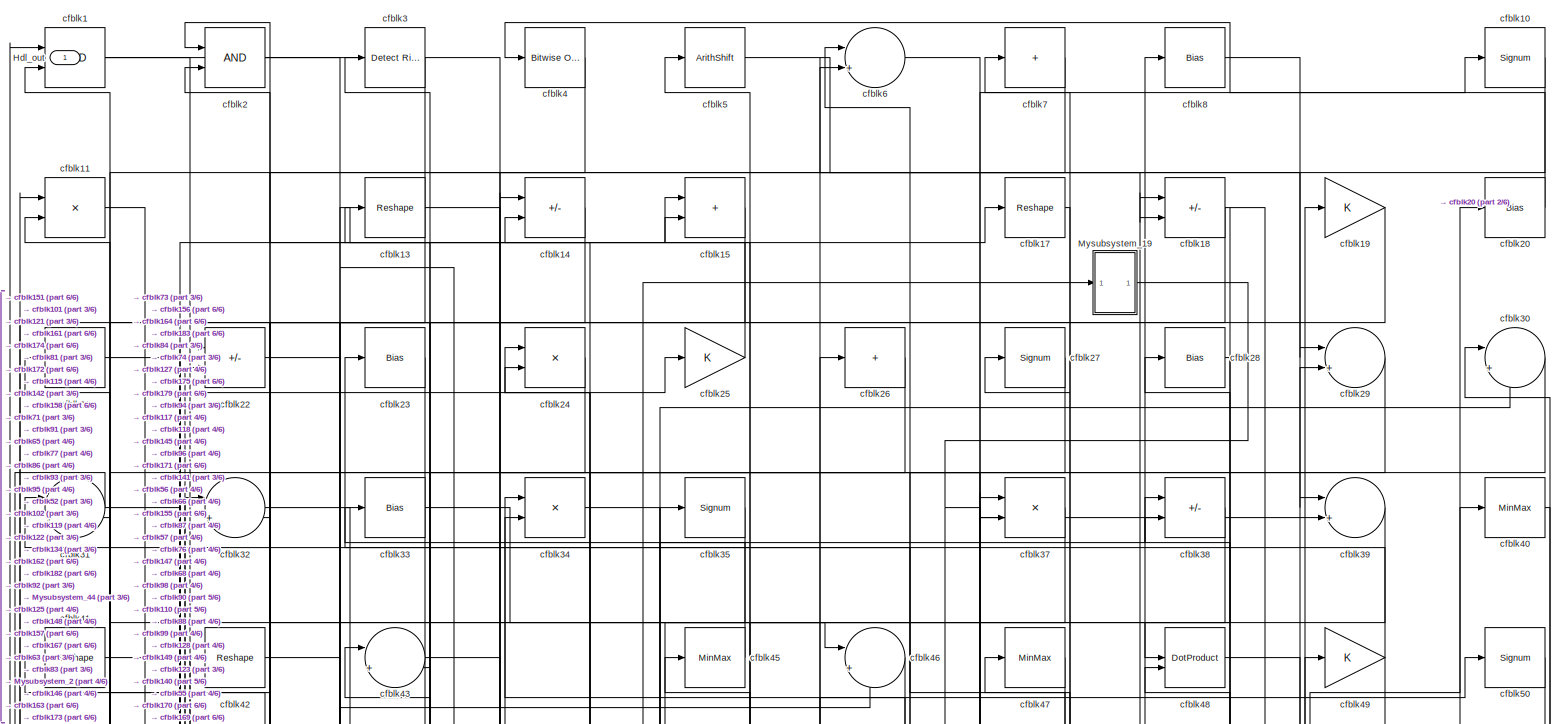
[diagram: root canvas - part 1/6, full width, top band]
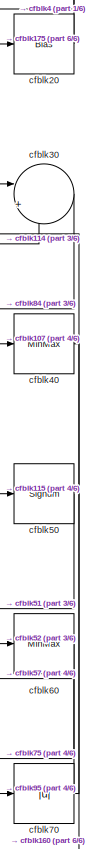
[diagram: root canvas - part 2/6, top right region]
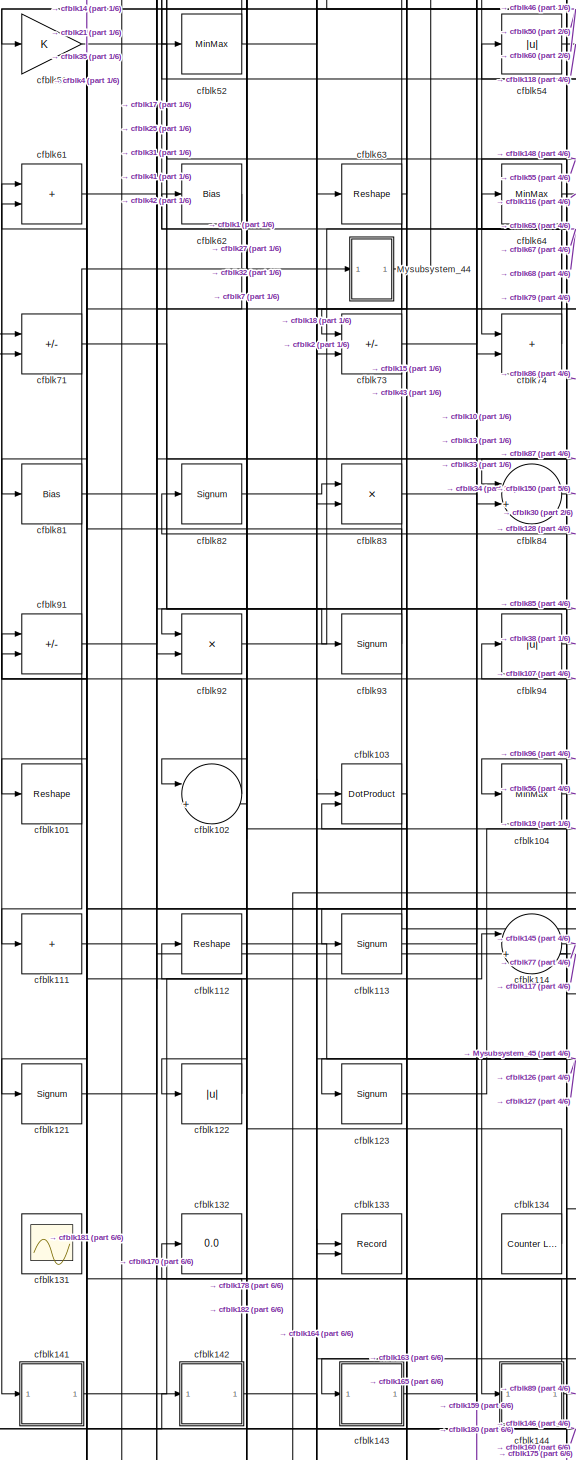
[diagram: root canvas - part 3/6, middle left region]
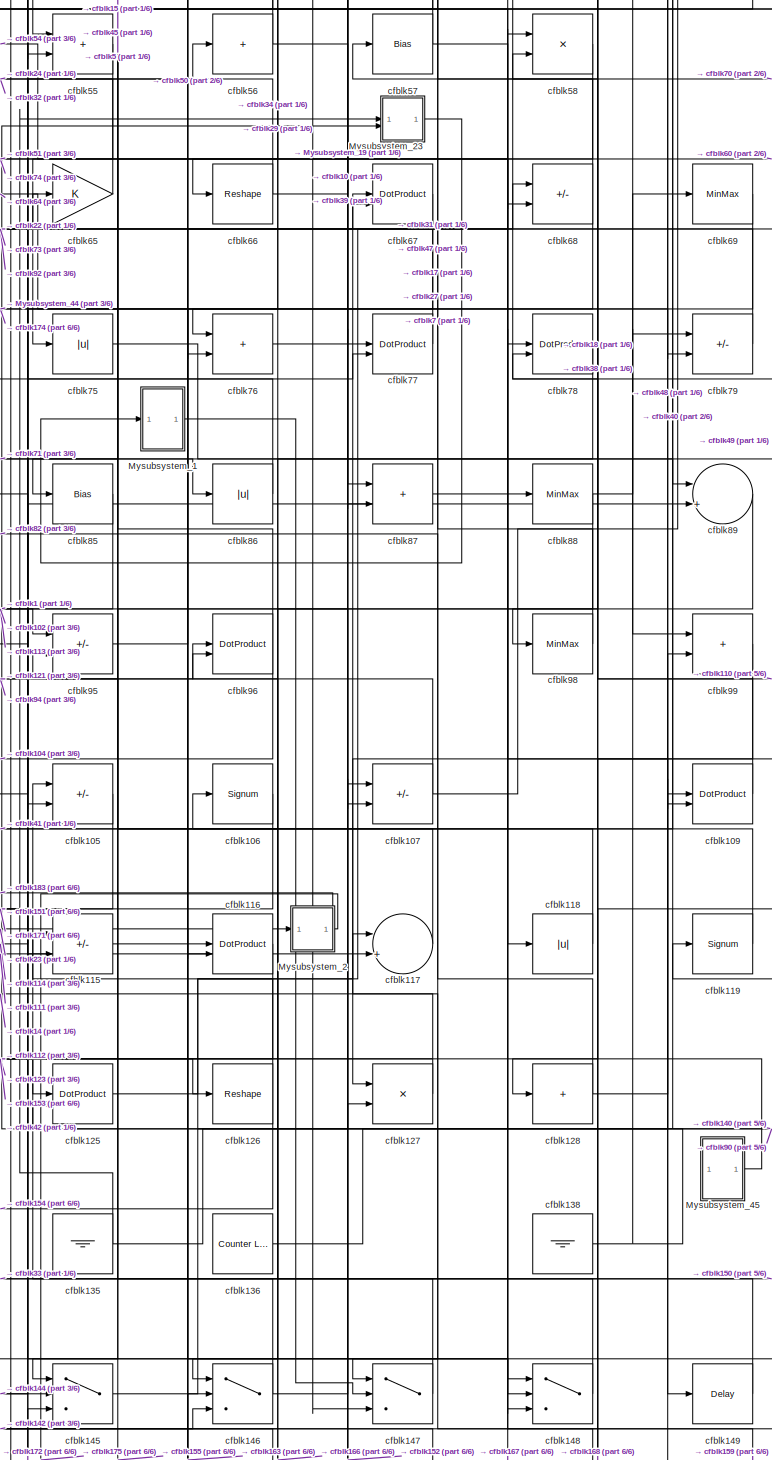
[diagram: root canvas - part 4/6, central region]
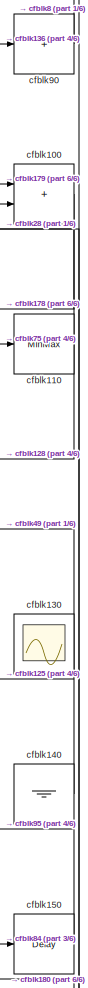
[diagram: root canvas - part 5/6, middle right region]
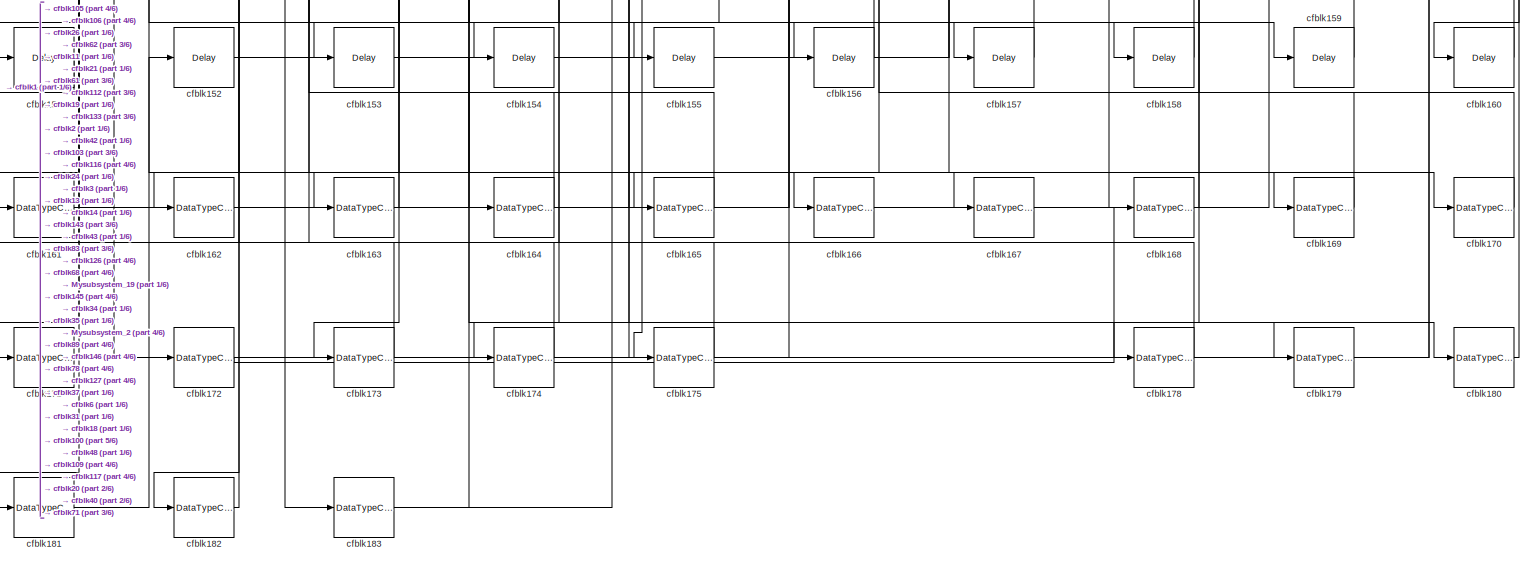
[diagram: root canvas - part 6/6, full width, bottom band]
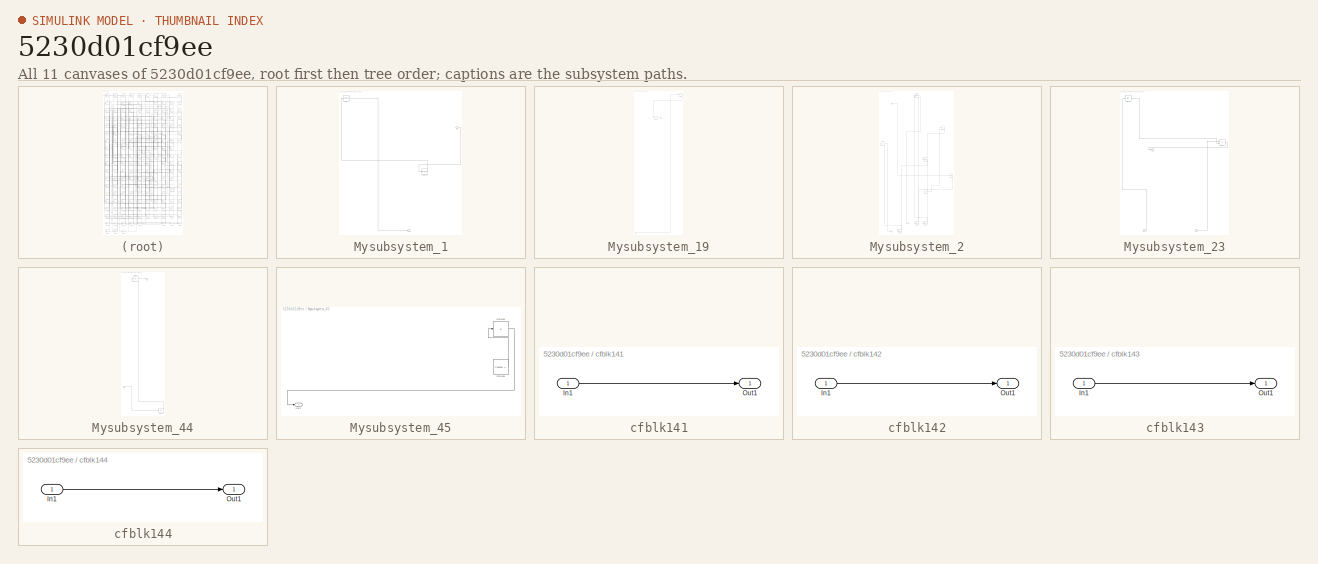
[diagram: thumbnail index - all 11 canvases of the model, root first then tree order]
MODEL slx_5230d01cf9ee
KIND model
CONFIG AbsTol = auto
CONFIG EnableMultiTasking = off
CONFIG FixedStep = auto
CONFIG MaxStep = auto
CONFIG MinStep = auto
CONFIG RelTol = 1e-3
CONFIG SampleTimeConstraint = Unconstrained
CONFIG SolverName = VariableStepAuto
CONFIG StartTime = 0.0
CONFIG StopTime = 10.0
BLOCK [Outport] Hdl_out
  OutDataTypeStr = uint8
BLOCK [SubSystem] Mysubsystem_1
  RTWFcnName = Mysubsystem_1
  RTWFcnNameOpts = User specified
  RTWFileNameOpts = Use function name
  RTWSystemCode = Reusable function
  TreatAsAtomicUnit = on
BLOCK [Inport] Mysubsystem_1/In1
BLOCK [Outport] Mysubsystem_1/Out1
BLOCK [Reshape] Mysubsystem_1/cfblk108
BLOCK [Signum] Mysubsystem_1/cfblk53
BLOCK [SubSystem] Mysubsystem_19
  RTWFcnName = Mysubsystem_19
  RTWFcnNameOpts = User specified
  RTWFileNameOpts = Use function name
  RTWSystemCode = Reusable function
  TreatAsAtomicUnit = on
BLOCK [Inport] Mysubsystem_19/In1
BLOCK [Outport] Mysubsystem_19/Out1
BLOCK [Sum] Mysubsystem_19/cfblk36
  IconShape = rectangular
  Inputs = +
BLOCK [Reshape] Mysubsystem_19/cfblk9
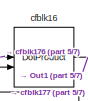
[diagram: Mysubsystem_2 - part 1/7, top center region]
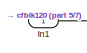
[diagram: Mysubsystem_2 - part 2/7, top left region]
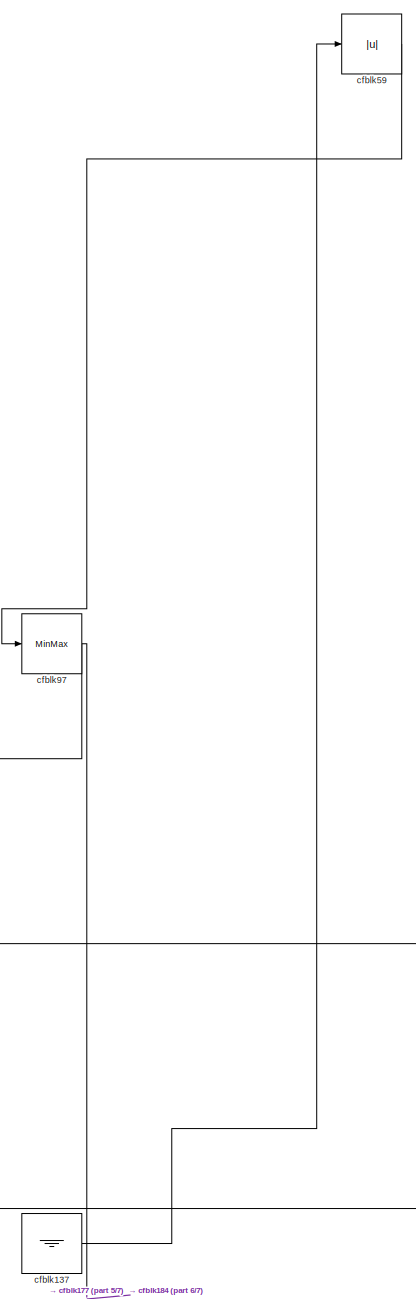
[diagram: Mysubsystem_2 - part 3/7, middle right region]
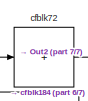
[diagram: Mysubsystem_2 - part 4/7, middle left region]
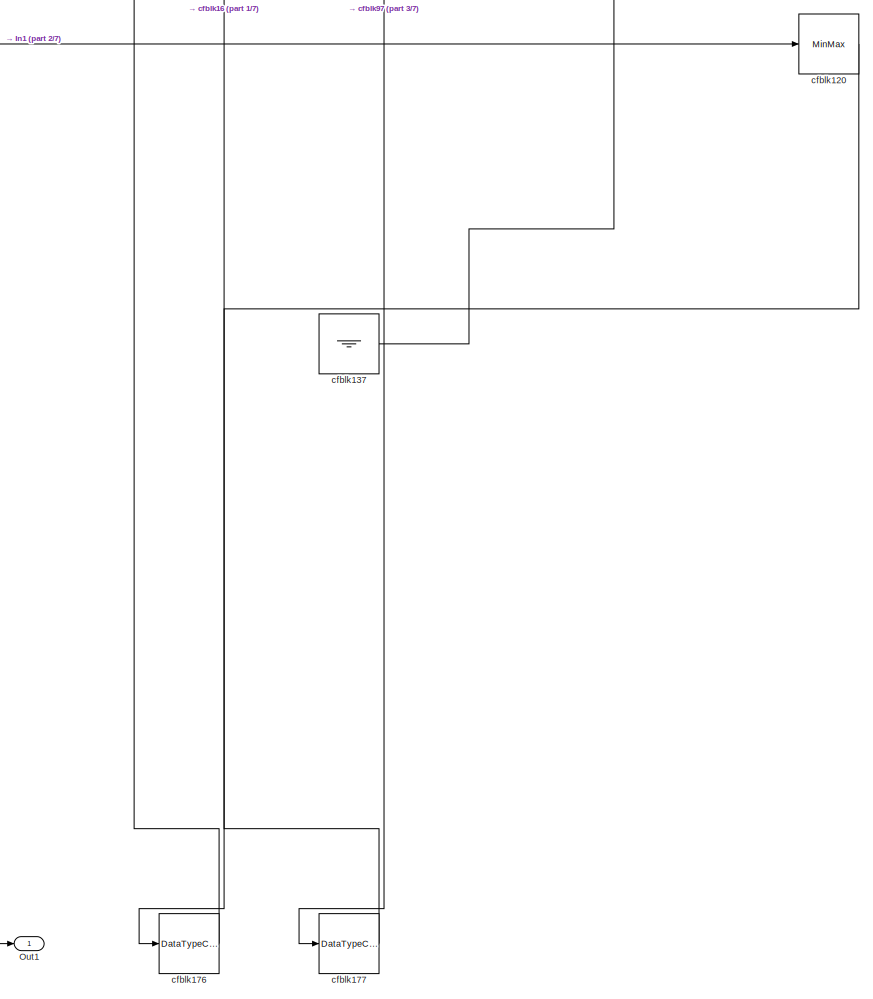
[diagram: Mysubsystem_2 - part 5/7, bottom right region]
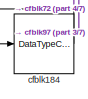
[diagram: Mysubsystem_2 - part 6/7, bottom left region]
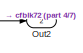
[diagram: Mysubsystem_2 - part 7/7, bottom left region]
BLOCK [SubSystem] Mysubsystem_2
  RTWFcnName = Mysubsystem_2
  RTWFcnNameOpts = User specified
  RTWFileNameOpts = Use function name
  RTWSystemCode = Reusable function
  TreatAsAtomicUnit = on
BLOCK [Inport] Mysubsystem_2/In1
BLOCK [Outport] Mysubsystem_2/Out1
BLOCK [Outport] Mysubsystem_2/Out2
  Port = 2
BLOCK [MinMax] Mysubsystem_2/cfblk120
BLOCK [Ground] Mysubsystem_2/cfblk137
BLOCK [DotProduct] Mysubsystem_2/cfblk16
  OutDataTypeStr = Inherit: Inherit via internal rule
BLOCK [DataTypeConversion] Mysubsystem_2/cfblk176
  OutDataTypeStr = uint8
  RndMeth = Floor
  SaturateOnIntegerOverflow = off
BLOCK [DataTypeConversion] Mysubsystem_2/cfblk177
  OutDataTypeStr = uint8
  RndMeth = Floor
  SaturateOnIntegerOverflow = off
BLOCK [DataTypeConversion] Mysubsystem_2/cfblk184
  OutDataTypeStr = uint8
  RndMeth = Floor
  SaturateOnIntegerOverflow = off
BLOCK [Abs] Mysubsystem_2/cfblk59
  SaturateOnIntegerOverflow = off
BLOCK [Sum] Mysubsystem_2/cfblk72
  IconShape = rectangular
  Inputs = +
BLOCK [MinMax] Mysubsystem_2/cfblk97
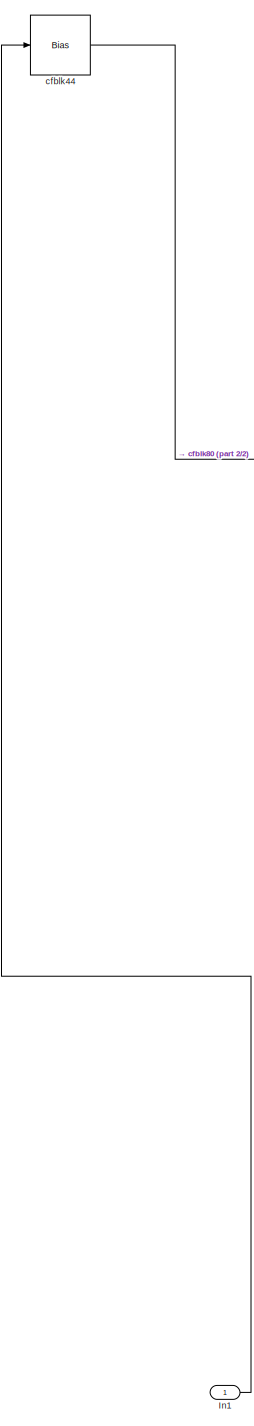
[diagram: Mysubsystem_23 - part 1/2, left side, full height]
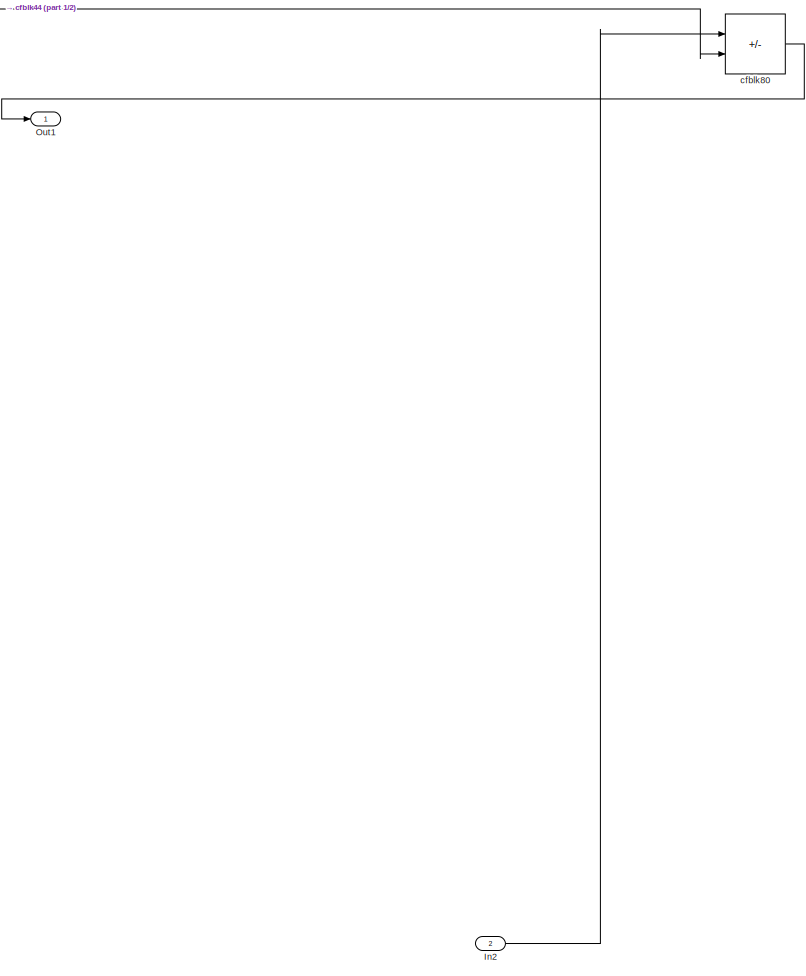
[diagram: Mysubsystem_23 - part 2/2, full width, middle band]
BLOCK [SubSystem] Mysubsystem_23
  RTWFcnName = Mysubsystem_23
  RTWFcnNameOpts = User specified
  RTWFileNameOpts = Use function name
  RTWSystemCode = Reusable function
  TreatAsAtomicUnit = on
BLOCK [Inport] Mysubsystem_23/In1
BLOCK [Inport] Mysubsystem_23/In2
  Port = 2
BLOCK [Outport] Mysubsystem_23/Out1
BLOCK [Bias] Mysubsystem_23/cfblk44
  Bias = 0.0
  SaturateOnIntegerOverflow = off
BLOCK [Sum] Mysubsystem_23/cfblk80
  IconShape = rectangular
  Inputs = +-
BLOCK [SubSystem] Mysubsystem_44
  RTWFcnName = Mysubsystem_44
  RTWFcnNameOpts = User specified
  RTWFileNameOpts = Use function name
  RTWSystemCode = Reusable function
  TreatAsAtomicUnit = on
BLOCK [Inport] Mysubsystem_44/In1
BLOCK [Outport] Mysubsystem_44/Out1
BLOCK [Abs] Mysubsystem_44/cfblk12
  SaturateOnIntegerOverflow = off
BLOCK [Abs] Mysubsystem_44/cfblk124
  SaturateOnIntegerOverflow = off
BLOCK [SubSystem] Mysubsystem_45
  RTWFcnName = Mysubsystem_45
  RTWFcnNameOpts = User specified
  RTWFileNameOpts = Use function name
  RTWSystemCode = Reusable function
  TreatAsAtomicUnit = on
BLOCK [Outport] Mysubsystem_45/Out1
BLOCK [Sum] Mysubsystem_45/cfblk129
  IconShape = rectangular
  Inputs = +
BLOCK [Reference] Mysubsystem_45/cfblk139  REF=hdlsllib/Sources/Counter
Limited
  SourceBlock = hdlsllib/Sources/Counter\nLimited
  SourceType = Counter Limited
BLOCK [Logic] cfblk1
  AllPortsSameDT = off
  OutDataTypeStr = boolean
BLOCK [Signum] cfblk10
BLOCK [Sum] cfblk100
  IconShape = rectangular
  OutDataTypeStr = uint8
BLOCK [Reshape] cfblk101
BLOCK [Sum] cfblk102
  Inputs = |++
  OutDataTypeStr = uint8
BLOCK [DotProduct] cfblk103
  OutDataTypeStr = uint8
BLOCK [MinMax] cfblk104
  OutDataTypeStr = uint8
BLOCK [Sum] cfblk105
  IconShape = rectangular
  Inputs = +-
  OutDataTypeStr = uint8
BLOCK [Signum] cfblk106
BLOCK [Sum] cfblk107
  IconShape = rectangular
  Inputs = +-
  OutDataTypeStr = uint8
BLOCK [DotProduct] cfblk109
  OutDataTypeStr = uint8
BLOCK [Product] cfblk11
  Inputs = */
  OutDataTypeStr = uint8
  RndMeth = Zero
  SaturateOnIntegerOverflow = on
BLOCK [MinMax] cfblk110
  OutDataTypeStr = uint8
BLOCK [Sum] cfblk111
  IconShape = rectangular
  Inputs = +
  OutDataTypeStr = uint8
BLOCK [Reshape] cfblk112
BLOCK [Signum] cfblk113
BLOCK [Sum] cfblk114
  Inputs = |++
  OutDataTypeStr = uint8
BLOCK [Sum] cfblk115
  IconShape = rectangular
  Inputs = +-
  OutDataTypeStr = uint8
BLOCK [DotProduct] cfblk116
  OutDataTypeStr = uint8
BLOCK [Sum] cfblk117
  Inputs = |++
  OutDataTypeStr = uint8
BLOCK [Abs] cfblk118
  OutDataTypeStr = uint8
  SaturateOnIntegerOverflow = off
BLOCK [Signum] cfblk119
BLOCK [Signum] cfblk121
BLOCK [Abs] cfblk122
  OutDataTypeStr = uint8
  SaturateOnIntegerOverflow = off
BLOCK [Signum] cfblk123
BLOCK [DotProduct] cfblk125
  OutDataTypeStr = uint8
BLOCK [Reshape] cfblk126
BLOCK [Product] cfblk127
  Inputs = */
  OutDataTypeStr = uint8
  RndMeth = Zero
  SaturateOnIntegerOverflow = on
BLOCK [Sum] cfblk128
  IconShape = rectangular
  Inputs = +
  OutDataTypeStr = uint8
BLOCK [Reshape] cfblk13
BLOCK [Scope] cfblk130
  Floating = on
  NumInputPorts = 1
  ScopeSpecificationString = Simulink.scopes.TimeScopeBlockCfg('CurrentConfiguration', extmgr.ConfigurationSet(extmgr.Configuration('Core','General UI',true,'FigureColor',[0.156862745098039 0.156862745098039 0.156862745098039]),extmgr.Configuration('Core','Source UI',true),extmgr.Configuration('Sources','WiredSimulink',true,'DataLoggingVariableName','ScopeData1','DataLoggingSaveFormat','StructureWithTime','DataLoggingLimitDat...<+2713ch>
BLOCK [Scope] cfblk131
  Floating = on
  NumInputPorts = 1
  ScopeSpecificationString = Simulink.scopes.TimeScopeBlockCfg('CurrentConfiguration', extmgr.ConfigurationSet(extmgr.Configuration('Core','General UI',true,'FigureColor',[0.156862745098039 0.156862745098039 0.156862745098039]),extmgr.Configuration('Core','Source UI',true),extmgr.Configuration('Sources','WiredSimulink',true,'DataLoggingVariableName','ScopeData1','DataLoggingSaveFormat','StructureWithTime','DataLoggingLimitDat...<+2713ch>
BLOCK [Display] cfblk132
  Decimation = 1
BLOCK [Record] cfblk133
  CompatibilityTag = XY
  FileSettingsInternal = {"entries":[{"content":{"excelSettings":{"content":{},"type":"Streamout.ExcelSettings"}},"type":"Streamout.FileSettingStorage","uuid":""}],"packageUris":["http:\/\/schema.mathworks.com\/mf0\/streamout_blocks\/R2020a"],"version":"1.0"}
  Layout = [1 1]
  SignalsInternal = {"entries":[{"content":{"signals":[{"content":{"blockPath":[],"dimensions":[1],"domain":"","lineColor":"#a2142f","plots":[1],"port":1,"signalID":38366,"signalName":"cfblk175"},"type":"RecordBlkView.Signal","uuid":""},{"content":{"blockPath":[],"dimensions":[1],"domain":"","lineColor":"#139fff","plots":[1],"port":2,"signalID":38369,"signalName":"cfblk63"},"type":"RecordBlkView.Signal","uuid":""}]},...<+143ch>
  VisualizationBindings = {"xyplotplugin":{"info":[{"series":[{"bindingParametersList":[{"parameter":"X-Axis","signalID":38366,"signalName":"cfblk175"},{"parameter":"Y-Axis","signalID":38369,"signalName":"cfblk63"}],"seriesID":61074}],"subplotID":1}]}}
  st = -1
BLOCK [Reference] cfblk134  REF=hdlsllib/Sources/Counter
Limited
  SourceBlock = hdlsllib/Sources/Counter\nLimited
  SourceType = Counter Limited
BLOCK [Ground] cfblk135
BLOCK [Reference] cfblk136  REF=hdlsllib/Sources/Counter
Limited
  SourceBlock = hdlsllib/Sources/Counter\nLimited
  SourceType = Counter Limited
BLOCK [Ground] cfblk138
BLOCK [Sum] cfblk14
  IconShape = rectangular
  Inputs = +-
  OutDataTypeStr = uint8
BLOCK [Ground] cfblk140
BLOCK [SubSystem] cfblk141
  LibrarySourceBlock = hdlsllib/Ports &\nSubsystems/Subsystem
BLOCK [Inport] cfblk141/In1
BLOCK [Outport] cfblk141/Out1
BLOCK [SubSystem] cfblk142
  LibrarySourceBlock = hdlsllib/Ports &\nSubsystems/Subsystem
BLOCK [Inport] cfblk142/In1
BLOCK [Outport] cfblk142/Out1
BLOCK [SubSystem] cfblk143
  LibrarySourceBlock = hdlsllib/Ports &\nSubsystems/Subsystem
BLOCK [Inport] cfblk143/In1
BLOCK [Outport] cfblk143/Out1
BLOCK [SubSystem] cfblk144
  LibrarySourceBlock = hdlsllib/Ports &\nSubsystems/Subsystem
BLOCK [Inport] cfblk144/In1
BLOCK [Outport] cfblk144/Out1
BLOCK [Switch] cfblk145
  InputSameDT = off
  OutDataTypeStr = uint8
  SaturateOnIntegerOverflow = off
BLOCK [Switch] cfblk146
  InputSameDT = off
  OutDataTypeStr = uint8
  SaturateOnIntegerOverflow = off
BLOCK [Switch] cfblk147
  InputSameDT = off
  OutDataTypeStr = uint8
  SaturateOnIntegerOverflow = off
BLOCK [Switch] cfblk148
  InputSameDT = off
  OutDataTypeStr = uint8
  SaturateOnIntegerOverflow = off
BLOCK [Delay] cfblk149
  InputPortMap = u0
  SampleTime = 1
BLOCK [Sum] cfblk15
  IconShape = rectangular
  OutDataTypeStr = uint8
BLOCK [Delay] cfblk150
  InputPortMap = u0
  SampleTime = 1
BLOCK [Delay] cfblk151
  InputPortMap = u0
  SampleTime = 1
BLOCK [Delay] cfblk152
  InputPortMap = u0
  SampleTime = 1
BLOCK [Delay] cfblk153
  InputPortMap = u0
  SampleTime = 1
BLOCK [Delay] cfblk154
  InputPortMap = u0
  SampleTime = 1
BLOCK [Delay] cfblk155
  InputPortMap = u0
  SampleTime = 1
BLOCK [Delay] cfblk156
  InputPortMap = u0
  SampleTime = 1
BLOCK [Delay] cfblk157
  InputPortMap = u0
  SampleTime = 1
BLOCK [Delay] cfblk158
  InputPortMap = u0
  SampleTime = 1
BLOCK [Delay] cfblk159
  InputPortMap = u0
  SampleTime = 1
BLOCK [Delay] cfblk160
  InputPortMap = u0
  SampleTime = 1
BLOCK [DataTypeConversion] cfblk161
  OutDataTypeStr = uint8
  RndMeth = Floor
  SaturateOnIntegerOverflow = off
BLOCK [DataTypeConversion] cfblk162
  OutDataTypeStr = uint8
  RndMeth = Floor
  SaturateOnIntegerOverflow = off
BLOCK [DataTypeConversion] cfblk163
  OutDataTypeStr = uint8
  RndMeth = Floor
  SaturateOnIntegerOverflow = off
BLOCK [DataTypeConversion] cfblk164
  OutDataTypeStr = uint8
  RndMeth = Floor
  SaturateOnIntegerOverflow = off
BLOCK [DataTypeConversion] cfblk165
  OutDataTypeStr = uint8
  RndMeth = Floor
  SaturateOnIntegerOverflow = off
BLOCK [DataTypeConversion] cfblk166
  OutDataTypeStr = uint8
  RndMeth = Floor
  SaturateOnIntegerOverflow = off
BLOCK [DataTypeConversion] cfblk167
  OutDataTypeStr = uint8
  RndMeth = Floor
  SaturateOnIntegerOverflow = off
BLOCK [DataTypeConversion] cfblk168
  OutDataTypeStr = uint8
  RndMeth = Floor
  SaturateOnIntegerOverflow = off
BLOCK [DataTypeConversion] cfblk169
  OutDataTypeStr = uint8
  RndMeth = Floor
  SaturateOnIntegerOverflow = off
BLOCK [Reshape] cfblk17
BLOCK [DataTypeConversion] cfblk170
  OutDataTypeStr = uint8
  RndMeth = Floor
  SaturateOnIntegerOverflow = off
BLOCK [DataTypeConversion] cfblk171
  OutDataTypeStr = uint8
  RndMeth = Floor
  SaturateOnIntegerOverflow = off
BLOCK [DataTypeConversion] cfblk172
  OutDataTypeStr = uint8
  RndMeth = Floor
  SaturateOnIntegerOverflow = off
BLOCK [DataTypeConversion] cfblk173
  OutDataTypeStr = uint8
  RndMeth = Floor
  SaturateOnIntegerOverflow = off
BLOCK [DataTypeConversion] cfblk174
  OutDataTypeStr = uint8
  RndMeth = Floor
  SaturateOnIntegerOverflow = off
BLOCK [DataTypeConversion] cfblk175
  OutDataTypeStr = uint8
  RndMeth = Floor
  SaturateOnIntegerOverflow = off
BLOCK [DataTypeConversion] cfblk178
  OutDataTypeStr = uint8
  RndMeth = Floor
  SaturateOnIntegerOverflow = off
BLOCK [DataTypeConversion] cfblk179
  OutDataTypeStr = uint8
  RndMeth = Floor
  SaturateOnIntegerOverflow = off
BLOCK [Sum] cfblk18
  IconShape = rectangular
  Inputs = +-
  OutDataTypeStr = uint8
BLOCK [DataTypeConversion] cfblk180
  OutDataTypeStr = uint8
  RndMeth = Floor
  SaturateOnIntegerOverflow = off
BLOCK [DataTypeConversion] cfblk181
  OutDataTypeStr = uint8
  RndMeth = Floor
  SaturateOnIntegerOverflow = off
BLOCK [DataTypeConversion] cfblk182
  OutDataTypeStr = uint8
  RndMeth = Floor
  SaturateOnIntegerOverflow = off
BLOCK [DataTypeConversion] cfblk183
  OutDataTypeStr = uint8
  RndMeth = Floor
  SaturateOnIntegerOverflow = off
BLOCK [Gain] cfblk19
  OutDataTypeStr = uint8
BLOCK [Logic] cfblk2
  AllPortsSameDT = off
  OutDataTypeStr = boolean
BLOCK [Bias] cfblk20
  Bias = 0.0
  SaturateOnIntegerOverflow = off
BLOCK [Sum] cfblk21
  IconShape = rectangular
  Inputs = +
  OutDataTypeStr = uint8
BLOCK [Sum] cfblk22
  IconShape = rectangular
  Inputs = +-
  OutDataTypeStr = uint8
BLOCK [Bias] cfblk23
  Bias = 0.0
  SaturateOnIntegerOverflow = off
BLOCK [Product] cfblk24
  Inputs = */
  OutDataTypeStr = uint8
  RndMeth = Zero
  SaturateOnIntegerOverflow = on
BLOCK [Gain] cfblk25
  OutDataTypeStr = uint8
BLOCK [Sum] cfblk26
  IconShape = rectangular
  Inputs = +
  OutDataTypeStr = uint8
BLOCK [Signum] cfblk27
BLOCK [Bias] cfblk28
  Bias = 0.0
  SaturateOnIntegerOverflow = off
BLOCK [Sum] cfblk29
  Inputs = |++
  OutDataTypeStr = uint8
BLOCK [Reference] cfblk3  REF=hdlsllib/Logic and Bit
Operations/Detect Rise
Positive
  SourceBlock = hdlsllib/Logic and Bit\nOperations/Detect Rise\nPositive
  SourceType = Detect Rise Positive
BLOCK [Sum] cfblk30
  Inputs = |++
  OutDataTypeStr = uint8
BLOCK [Sum] cfblk31
  Inputs = |++
  OutDataTypeStr = uint8
BLOCK [Sum] cfblk32
  Inputs = |++
  OutDataTypeStr = uint8
BLOCK [Bias] cfblk33
  Bias = 0.0
  SaturateOnIntegerOverflow = off
BLOCK [Product] cfblk34
  Inputs = */
  OutDataTypeStr = uint8
  RndMeth = Zero
  SaturateOnIntegerOverflow = on
BLOCK [Signum] cfblk35
BLOCK [Product] cfblk37
  Inputs = */
  OutDataTypeStr = uint8
  RndMeth = Zero
  SaturateOnIntegerOverflow = on
BLOCK [Sum] cfblk38
  IconShape = rectangular
  Inputs = +-
  OutDataTypeStr = uint8
BLOCK [Sum] cfblk39
  Inputs = |++
  OutDataTypeStr = uint8
BLOCK [Reference] cfblk4  REF=simulink/Logic and Bit
Operations/Bitwise
Operator
  LibrarySourceBlock = hdlsllib/Logic and Bit\nOperations/Bitwise\nOperator
  SourceBlock = simulink/Logic and Bit\nOperations/Bitwise\nOperator
  SourceType = Bitwise Operator
BLOCK [MinMax] cfblk40
  OutDataTypeStr = uint8
BLOCK [Reshape] cfblk41
BLOCK [Reshape] cfblk42
BLOCK [Sum] cfblk43
  Inputs = |++
  OutDataTypeStr = uint8
BLOCK [MinMax] cfblk45
  OutDataTypeStr = uint8
BLOCK [Sum] cfblk46
  Inputs = |++
  OutDataTypeStr = uint8
BLOCK [MinMax] cfblk47
  OutDataTypeStr = uint8
BLOCK [DotProduct] cfblk48
  OutDataTypeStr = uint8
BLOCK [Gain] cfblk49
  OutDataTypeStr = uint8
BLOCK [ArithShift] cfblk5
  BitShiftNumber = 8
  InputPortMap = u0
BLOCK [Signum] cfblk50
BLOCK [Gain] cfblk51
  OutDataTypeStr = uint8
BLOCK [MinMax] cfblk52
  OutDataTypeStr = uint8
BLOCK [Abs] cfblk54
  OutDataTypeStr = uint8
  SaturateOnIntegerOverflow = off
BLOCK [Sum] cfblk55
  IconShape = rectangular
  OutDataTypeStr = uint8
BLOCK [Sum] cfblk56
  IconShape = rectangular
  Inputs = +
  OutDataTypeStr = uint8
BLOCK [Bias] cfblk57
  Bias = 0.0
  SaturateOnIntegerOverflow = off
BLOCK [Product] cfblk58
  Inputs = */
  OutDataTypeStr = uint8
  RndMeth = Zero
  SaturateOnIntegerOverflow = on
BLOCK [Sum] cfblk6
  Inputs = |++
  OutDataTypeStr = uint8
BLOCK [MinMax] cfblk60
  OutDataTypeStr = uint8
BLOCK [Sum] cfblk61
  IconShape = rectangular
  OutDataTypeStr = uint8
BLOCK [Bias] cfblk62
  Bias = 0.0
  SaturateOnIntegerOverflow = off
BLOCK [Reshape] cfblk63
BLOCK [MinMax] cfblk64
  OutDataTypeStr = uint8
BLOCK [Gain] cfblk65
  OutDataTypeStr = uint8
BLOCK [Reshape] cfblk66
BLOCK [DotProduct] cfblk67
  OutDataTypeStr = uint8
BLOCK [Sum] cfblk68
  IconShape = rectangular
  Inputs = +-
  OutDataTypeStr = uint8
BLOCK [MinMax] cfblk69
  OutDataTypeStr = uint8
BLOCK [Sum] cfblk7
  IconShape = rectangular
  Inputs = +
  OutDataTypeStr = uint8
BLOCK [Abs] cfblk70
  OutDataTypeStr = uint8
  SaturateOnIntegerOverflow = off
BLOCK [Sum] cfblk71
  IconShape = rectangular
  Inputs = +-
  OutDataTypeStr = uint8
BLOCK [Sum] cfblk73
  IconShape = rectangular
  Inputs = +-
  OutDataTypeStr = uint8
BLOCK [Sum] cfblk74
  IconShape = rectangular
  OutDataTypeStr = uint8
BLOCK [Abs] cfblk75
  OutDataTypeStr = uint8
  SaturateOnIntegerOverflow = off
BLOCK [Sum] cfblk76
  IconShape = rectangular
  OutDataTypeStr = uint8
BLOCK [DotProduct] cfblk77
  OutDataTypeStr = uint8
BLOCK [DotProduct] cfblk78
  OutDataTypeStr = uint8
BLOCK [Sum] cfblk79
  IconShape = rectangular
  Inputs = +-
  OutDataTypeStr = uint8
BLOCK [Bias] cfblk8
  Bias = 0.0
  SaturateOnIntegerOverflow = off
BLOCK [Bias] cfblk81
  Bias = 0.0
  SaturateOnIntegerOverflow = off
BLOCK [Signum] cfblk82
BLOCK [Product] cfblk83
  Inputs = */
  OutDataTypeStr = uint8
  RndMeth = Zero
  SaturateOnIntegerOverflow = on
BLOCK [Sum] cfblk84
  Inputs = |++
  OutDataTypeStr = uint8
BLOCK [Bias] cfblk85
  Bias = 0.0
  SaturateOnIntegerOverflow = off
BLOCK [Abs] cfblk86
  OutDataTypeStr = uint8
  SaturateOnIntegerOverflow = off
BLOCK [Sum] cfblk87
  IconShape = rectangular
  OutDataTypeStr = uint8
BLOCK [MinMax] cfblk88
  OutDataTypeStr = uint8
BLOCK [Sum] cfblk89
  Inputs = |++
  OutDataTypeStr = uint8
BLOCK [Sum] cfblk90
  IconShape = rectangular
  Inputs = +
  OutDataTypeStr = uint8
BLOCK [Sum] cfblk91
  IconShape = rectangular
  Inputs = +-
  OutDataTypeStr = uint8
BLOCK [Product] cfblk92
  Inputs = */
  OutDataTypeStr = uint8
  RndMeth = Zero
  SaturateOnIntegerOverflow = on
BLOCK [Signum] cfblk93
BLOCK [Abs] cfblk94
  OutDataTypeStr = uint8
  SaturateOnIntegerOverflow = off
BLOCK [Sum] cfblk95
  IconShape = rectangular
  Inputs = +-
  OutDataTypeStr = uint8
BLOCK [DotProduct] cfblk96
  OutDataTypeStr = uint8
BLOCK [MinMax] cfblk98
  OutDataTypeStr = uint8
BLOCK [Sum] cfblk99
  IconShape = rectangular
  OutDataTypeStr = uint8
LINE Mysubsystem_1/In1:1 -> Mysubsystem_1/cfblk108:1
LINE Mysubsystem_1/cfblk108:1 -> Mysubsystem_1/cfblk53:1
LINE Mysubsystem_1/cfblk53:1 -> Mysubsystem_1/Out1:1
LINE Mysubsystem_19/In1:1 -> Mysubsystem_19/cfblk9:1
LINE Mysubsystem_19/cfblk36:1 -> Mysubsystem_19/Out1:1
LINE Mysubsystem_19/cfblk9:1 -> Mysubsystem_19/cfblk36:1
NET Mysubsystem_19:1 -> cfblk147:3, cfblk87:1
LINE Mysubsystem_1:1 -> cfblk147:2
LINE Mysubsystem_2/In1:1 -> Mysubsystem_2/cfblk120:1
LINE Mysubsystem_2/cfblk120:1 -> Mysubsystem_2/cfblk176:1
LINE Mysubsystem_2/cfblk137:1 -> Mysubsystem_2/cfblk59:1
LINE Mysubsystem_2/cfblk16:1 -> Mysubsystem_2/Out1:1
LINE Mysubsystem_2/cfblk176:1 -> Mysubsystem_2/cfblk16:1
LINE Mysubsystem_2/cfblk177:1 -> Mysubsystem_2/cfblk16:2
LINE Mysubsystem_2/cfblk184:1 -> Mysubsystem_2/cfblk72:1
LINE Mysubsystem_2/cfblk59:1 -> Mysubsystem_2/cfblk97:1
LINE Mysubsystem_2/cfblk72:1 -> Mysubsystem_2/Out2:1
NET Mysubsystem_2/cfblk97:1 -> Mysubsystem_2/cfblk177:1, Mysubsystem_2/cfblk184:1
LINE Mysubsystem_23/In1:1 -> Mysubsystem_23/cfblk44:1
LINE Mysubsystem_23/In2:1 -> Mysubsystem_23/cfblk80:1
LINE Mysubsystem_23/cfblk44:1 -> Mysubsystem_23/cfblk80:2
LINE Mysubsystem_23/cfblk80:1 -> Mysubsystem_23/Out1:1
LINE Mysubsystem_23:1 -> Mysubsystem_1:1
LINE Mysubsystem_2:1 -> cfblk175:1
LINE Mysubsystem_2:2 -> cfblk183:1
LINE Mysubsystem_44/In1:1 -> Mysubsystem_44/cfblk124:1
LINE Mysubsystem_44/cfblk124:1 -> Mysubsystem_44/cfblk12:1
LINE Mysubsystem_44/cfblk12:1 -> Mysubsystem_44/Out1:1
NET Mysubsystem_44:1 -> cfblk15:2, cfblk79:2
LINE Mysubsystem_45/cfblk129:1 -> Mysubsystem_45/Out1:1
LINE Mysubsystem_45/cfblk139:1 -> Mysubsystem_45/cfblk129:1
LINE Mysubsystem_45:1 -> cfblk144:1
LINE cfblk100:1 -> cfblk178:1
NET cfblk101:1 -> Mysubsystem_44:1, cfblk111:1
LINE cfblk102:1 -> cfblk61:1
LINE cfblk103:1 -> cfblk163:1
LINE cfblk104:1 -> cfblk56:1
LINE cfblk105:1 -> cfblk151:1
LINE cfblk106:1 -> cfblk171:1
NET cfblk107:1 -> cfblk40:1, cfblk94:1
LINE cfblk109:1 -> cfblk58:2
LINE cfblk10:1 -> cfblk74:2
NET cfblk110:1 -> cfblk128:1, cfblk28:1
LINE cfblk111:1 -> cfblk117:2
LINE cfblk112:1 -> cfblk126:1
LINE cfblk113:1 -> cfblk67:2
NET cfblk114:1 -> cfblk145:2, cfblk30:2, cfblk77:2
NET cfblk115:1 -> cfblk148:3, cfblk50:1
LINE cfblk116:1 -> cfblk153:1
LINE cfblk117:1 -> cfblk5:1
LINE cfblk118:1 -> cfblk15:1
NET cfblk119:1 -> cfblk41:1, cfblk96:2
LINE cfblk11:1 -> cfblk172:1
LINE cfblk121:1 -> cfblk96:1
NET cfblk122:1 -> cfblk21:1, cfblk91:2
LINE cfblk123:1 -> cfblk19:1
LINE cfblk125:1 -> cfblk67:1
NET cfblk126:1 -> cfblk115:1, cfblk154:1
NET cfblk127:1 -> cfblk123:1, cfblk14:2
NET cfblk128:1 -> cfblk29:2, cfblk82:1
LINE cfblk134:1 -> cfblk32:2
NET cfblk135:1 -> Mysubsystem_23:1, cfblk107:1
NET cfblk136:1 -> cfblk119:1, cfblk90:1
NET cfblk138:1 -> Mysubsystem_23:2, cfblk69:1
NET cfblk13:1 -> Hdl_out:1, cfblk102:2, cfblk156:1
NET cfblk140:1 -> cfblk125:2, cfblk49:1
LINE cfblk141/In1:1 -> cfblk141/Out1:1
LINE cfblk141:1 -> cfblk114:1
LINE cfblk142/In1:1 -> cfblk142/Out1:1
NET cfblk142:1 -> cfblk132:1, cfblk146:3
LINE cfblk143/In1:1 -> cfblk143/Out1:1
LINE cfblk143:1 -> cfblk159:1
LINE cfblk144/In1:1 -> cfblk144/Out1:1
NET cfblk144:1 -> cfblk114:2, cfblk89:2, cfblk91:1
NET cfblk145:1 -> cfblk58:1, cfblk99:2
NET cfblk146:1 -> cfblk33:1, cfblk77:1
LINE cfblk147:1 -> cfblk105:1
LINE cfblk148:1 -> cfblk106:1
LINE cfblk149:1 -> cfblk22:1
NET cfblk14:1 -> cfblk43:2, cfblk81:1
LINE cfblk150:1 -> cfblk95:2
LINE cfblk151:1 -> cfblk1:1
LINE cfblk152:1 -> cfblk127:2
LINE cfblk153:1 -> cfblk165:1
LINE cfblk154:1 -> cfblk146:2
LINE cfblk155:1 -> cfblk37:1
LINE cfblk156:1 -> cfblk2:2
LINE cfblk157:1 -> cfblk31:2
LINE cfblk158:1 -> cfblk18:1
LINE cfblk159:1 -> cfblk117:1
NET cfblk15:1 -> cfblk52:1, cfblk71:2, cfblk73:1, cfblk73:2
LINE cfblk160:1 -> cfblk71:1
LINE cfblk161:1 -> cfblk35:1
LINE cfblk162:1 -> cfblk26:1
NET cfblk163:1 -> cfblk116:1, cfblk3:1
LINE cfblk164:1 -> cfblk103:1
LINE cfblk165:1 -> cfblk103:2
LINE cfblk166:1 -> cfblk109:1
LINE cfblk167:1 -> cfblk78:1
LINE cfblk168:1 -> cfblk78:2
LINE cfblk169:1 -> cfblk48:2
LINE cfblk170:1 -> cfblk6:1
LINE cfblk171:1 -> cfblk6:2
NET cfblk172:1 -> cfblk145:3, cfblk168:1
LINE cfblk173:1 -> cfblk11:1
LINE cfblk174:1 -> cfblk11:2
NET cfblk175:1 -> cfblk133:1, cfblk20:1, cfblk24:2
LINE cfblk178:1 -> cfblk112:1
LINE cfblk179:1 -> cfblk100:1
LINE cfblk17:1 -> cfblk147:1
LINE cfblk180:1 -> cfblk100:2
LINE cfblk181:1 -> cfblk152:1
LINE cfblk182:1 -> cfblk62:1
NET cfblk183:1 -> Mysubsystem_19:1, cfblk14:1
NET cfblk18:1 -> cfblk83:2, cfblk98:1, cfblk99:1
LINE cfblk19:1 -> cfblk182:1
LINE cfblk1:1 -> cfblk95:1
LINE cfblk20:1 -> cfblk4:1
LINE cfblk21:1 -> cfblk158:1
LINE cfblk22:1 -> cfblk148:2
LINE cfblk23:1 -> Mysubsystem_2:1
LINE cfblk24:1 -> cfblk173:1
LINE cfblk25:1 -> cfblk2:1
LINE cfblk26:1 -> cfblk161:1
LINE cfblk27:1 -> cfblk92:1
LINE cfblk28:1 -> cfblk48:1
LINE cfblk29:1 -> cfblk66:1
NET cfblk2:1 -> cfblk157:1, cfblk63:1
LINE cfblk30:1 -> cfblk84:1
NET cfblk31:1 -> cfblk115:2, cfblk142:1
LINE cfblk32:1 -> cfblk68:2
NET cfblk33:1 -> cfblk46:1, cfblk84:2
LINE cfblk34:1 -> cfblk179:1
LINE cfblk35:1 -> cfblk121:1
LINE cfblk37:1 -> cfblk162:1
LINE cfblk38:1 -> cfblk145:1
LINE cfblk39:1 -> cfblk55:1
LINE cfblk3:1 -> cfblk37:2
LINE cfblk40:1 -> cfblk160:1
NET cfblk41:1 -> cfblk86:1, cfblk93:1
NET cfblk42:1 -> cfblk125:1, cfblk167:1, cfblk46:2
LINE cfblk43:1 -> cfblk164:1
LINE cfblk45:1 -> cfblk13:1
LINE cfblk46:1 -> cfblk141:1
LINE cfblk47:1 -> cfblk76:1
LINE cfblk48:1 -> cfblk149:1
NET cfblk49:1 -> cfblk23:1, cfblk55:2
LINE cfblk4:1 -> cfblk101:1
LINE cfblk50:1 -> cfblk51:1
LINE cfblk51:1 -> cfblk148:1
NET cfblk52:1 -> cfblk1:2, cfblk60:1
LINE cfblk54:1 -> cfblk118:1
LINE cfblk55:1 -> cfblk74:1
NET cfblk56:1 -> cfblk34:2, cfblk89:1
NET cfblk57:1 -> cfblk109:2, cfblk31:1
LINE cfblk58:1 -> cfblk85:1
NET cfblk5:1 -> cfblk18:2, cfblk39:1
LINE cfblk60:1 -> cfblk75:1
LINE cfblk61:1 -> cfblk170:1
LINE cfblk62:1 -> cfblk181:1
NET cfblk63:1 -> cfblk133:2, cfblk43:1
NET cfblk64:1 -> cfblk116:2, cfblk92:2
LINE cfblk65:1 -> cfblk32:1
NET cfblk66:1 -> cfblk24:1, cfblk39:2
LINE cfblk67:1 -> cfblk105:2
NET cfblk68:1 -> cfblk174:1, cfblk47:1
LINE cfblk69:1 -> cfblk76:2
LINE cfblk6:1 -> cfblk169:1
NET cfblk70:1 -> cfblk30:1, cfblk57:1
NET cfblk71:1 -> cfblk107:2, cfblk17:1, cfblk87:2
LINE cfblk73:1 -> cfblk65:1
LINE cfblk74:1 -> cfblk34:1
LINE cfblk75:1 -> cfblk110:1
LINE cfblk76:1 -> cfblk10:1
LINE cfblk77:1 -> cfblk22:2
LINE cfblk78:1 -> cfblk166:1
LINE cfblk79:1 -> cfblk64:1
LINE cfblk7:1 -> cfblk122:1
LINE cfblk81:1 -> cfblk25:1
LINE cfblk82:1 -> cfblk83:1
NET cfblk83:1 -> cfblk143:1, cfblk180:1
LINE cfblk84:1 -> cfblk150:1
NET cfblk85:1 -> cfblk102:1, cfblk113:1
LINE cfblk86:1 -> cfblk54:1
LINE cfblk87:1 -> cfblk88:1
NET cfblk88:1 -> cfblk146:1, cfblk38:1, cfblk79:1
LINE cfblk89:1 -> cfblk155:1
LINE cfblk8:1 -> cfblk29:1
LINE cfblk90:1 -> cfblk8:1
LINE cfblk91:1 -> cfblk42:1
LINE cfblk92:1 -> cfblk68:1
LINE cfblk93:1 -> cfblk61:2
LINE cfblk94:1 -> cfblk38:2
LINE cfblk95:1 -> cfblk70:1
NET cfblk96:1 -> cfblk104:1, cfblk45:1
NET cfblk98:1 -> cfblk27:1, cfblk7:1
LINE cfblk99:1 -> cfblk127:1
note: NET lines group one-source signal fan-out (src -> all destinations, sorted); 1:1 wires keep LINE
